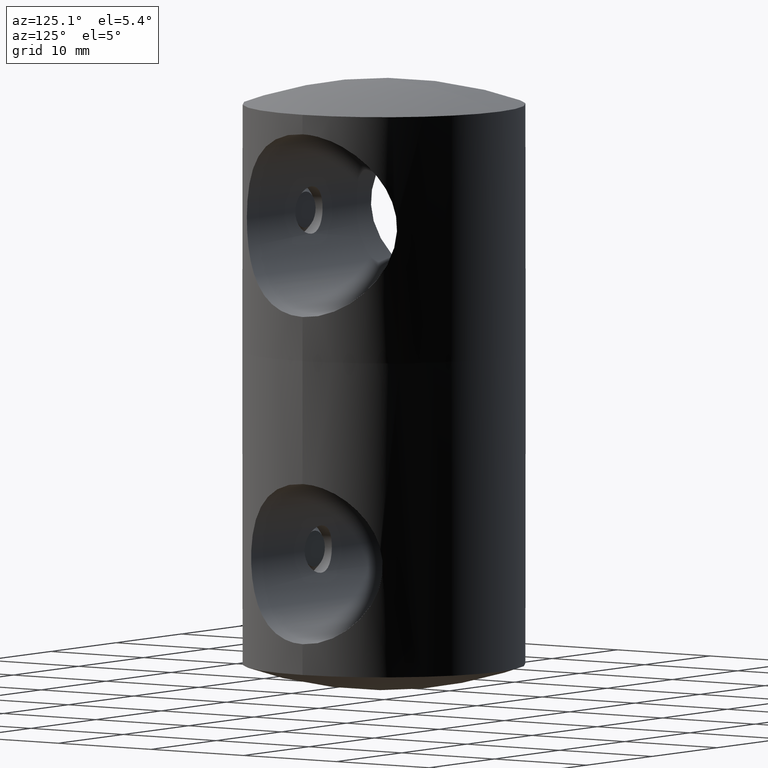
[diagram: clean part render]
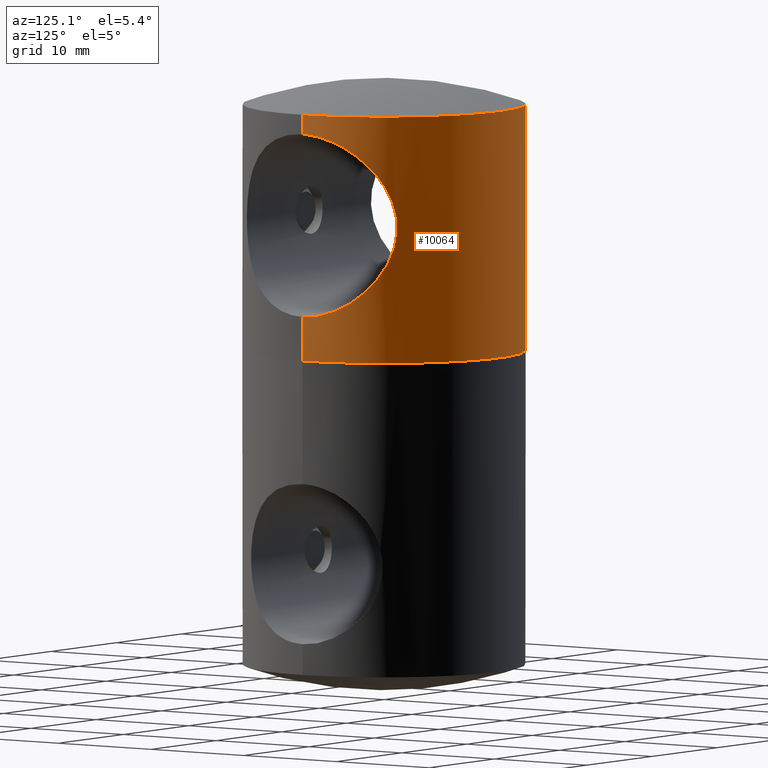
[diagram: same view with one face highlighted and labeled with its STEP entity id]
A machine part, auxiliary view. The second image highlights one B-rep face of the part: STEP entity #10064.
In plain terms, the highlighted cylindrical surface (partial cylindrical patch) has radius 12.5 mm, axis along (-0, -0, -1).
Its self-contained STEP definition (entity closure, byte-faithful):
#131 = CARTESIAN_POINT ( 'NONE',  ( 12.50000000000000000, 2.427082314390154871E-15, 8.099999999999999645 ) ) ;
#816 = CARTESIAN_POINT ( 'NONE',  ( -12.35767926092468372, 1.900159969238726543, -7.878707128710948915 ) ) ;
#1101 = CARTESIAN_POINT ( 'NONE',  ( 11.72524645729331816, 4.338365169962789203, 6.845111458609633104 ) ) ;
#1163 = CARTESIAN_POINT ( 'NONE',  ( 9.950403799970375829, 7.566749653861298164, 2.902343117262097039 ) ) ;
#1217 = CARTESIAN_POINT ( 'NONE',  ( 9.879722448543168056, 7.661982178162126012, -2.679246210205128431 ) ) ;
#1344 = CARTESIAN_POINT ( 'NONE',  ( 11.29218558167254827, 5.376423904100859019, 6.080519229928162517 ) ) ;
#1398 = CARTESIAN_POINT ( 'NONE',  ( -12.22154858838973723, 2.672405942506484777, 7.665063226666491758 ) ) ;
#1484 = VERTEX_POINT ( 'NONE', #9557 ) ;
#1495 = ORIENTED_EDGE ( 'NONE', *, *, #7119, .F. ) ;
#1600 = AXIS2_PLACEMENT_3D ( 'NONE', #2132, #10835, #10572 ) ;
#1831 = CARTESIAN_POINT ( 'NONE',  ( -12.50000000000000000, 8.967065496086580962E-16, 8.099999999999999645 ) ) ;
#1877 = DIRECTION ( 'NONE',  ( -0.000000000000000000, -0.000000000000000000, -1.000000000000000000 ) ) ;
#1919 = CIRCLE ( 'NONE', #2546, 12.49999999999999822 ) ;
#2059 = DIRECTION ( 'NONE',  ( -0.000000000000000000, -0.000000000000000000, -1.000000000000000000 ) ) ;
#2132 = CARTESIAN_POINT ( 'NONE',  ( 0.000000000000000000, 8.964901825574695679E-16, -12.00000000000000000 ) ) ;
#2259 = CARTESIAN_POINT ( 'NONE',  ( -9.880334013773667934, 7.657619852546257988, -2.653716543376681170 ) ) ;
#2276 = DIRECTION ( 'NONE',  ( -0.000000000000000000, -0.000000000000000000, -1.000000000000000000 ) ) ;
#2318 = CARTESIAN_POINT ( 'NONE',  ( -12.21248697414113771, 2.678358357532246714, -7.649100295587559550 ) ) ;
#2509 = CARTESIAN_POINT ( 'NONE',  ( -11.80508178603171565, 4.116968738876153111, -6.980705647827456950 ) ) ;
#2542 = CARTESIAN_POINT ( 'NONE',  ( 12.50000000000000355, 0.5528784438871122697, -8.100000000000003197 ) ) ;
#2546 = AXIS2_PLACEMENT_3D ( 'NONE', #4059, #9712, #14084 ) ;
#2665 = CARTESIAN_POINT ( 'NONE',  ( 9.615099075722453037, 7.987791517898862104, -1.370301011411880543 ) ) ;
#2666 = CARTESIAN_POINT ( 'NONE',  ( -12.49112763227392442, 0.5438777286051753590, 8.086328554396601476 ) ) ;
#2716 = CARTESIAN_POINT ( 'NONE',  ( 12.50000000000000000, 7.513900949208801608E-16, -8.099999999999999645 ) ) ;
#2729 = CARTESIAN_POINT ( 'NONE',  ( 9.700917027979013341, 7.883344374810544508, 1.880594189877250466 ) ) ;
#2788 = CARTESIAN_POINT ( 'NONE',  ( -12.42869573539206485, 1.360138927175487567, 7.989633586327260062 ) ) ;
#2829 = EDGE_LOOP ( 'NONE', ( #5062, #8302, #9232, #13770, #8768, #1495, #14855, #10532, #14150 ) ) ;
#3263 = CARTESIAN_POINT ( 'NONE',  ( 12.50000000000000000, 2.427298681491661089E-15, -12.00000000000000000 ) ) ;
#3683 = DIRECTION ( 'NONE',  ( -0.000000000000000000, -0.000000000000000000, -1.000000000000000000 ) ) ;
#3963 = CARTESIAN_POINT ( 'NONE',  ( -9.568569244901519610, 8.044376384039832573, -1.090564506137312373 ) ) ;
#4004 = CARTESIAN_POINT ( 'NONE',  ( 11.80531911616417062, 4.116239418310659204, 6.981102035184365562 ) ) ;
#4022 = AXIS2_PLACEMENT_3D ( 'NONE', #12107, #2059, #9372 ) ;
#4059 = CARTESIAN_POINT ( 'NONE',  ( 0.000000000000000000, 8.964901825574695679E-16, 9.824560298731698893 ) ) ;
#4080 = CARTESIAN_POINT ( 'NONE',  ( -12.50000000000000000, 8.964901825574695679E-16, -12.00000000000000000 ) ) ;
#4135 = CARTESIAN_POINT ( 'NONE',  ( 10.72318549548232269, 6.432673087154401337, -4.949268225173659275 ) ) ;
#4193 = CARTESIAN_POINT ( 'NONE',  ( 11.29106218945797657, 5.378467049727134075, -6.078259987980083601 ) ) ;
#4204 = LINE ( 'NONE', #4984, #15411 ) ;
#4256 = CARTESIAN_POINT ( 'NONE',  ( -12.32358639111075327, 2.160796334112378592, 7.825461659380446910 ) ) ;
#4316 = CARTESIAN_POINT ( 'NONE',  ( -12.50000000000000000, 8.967065496086580962E-16, 8.099999999999999645 ) ) ;
#4349 = EDGE_CURVE ( 'NONE', #6948, #16384, #8042, .T. ) ;
#4364 = CARTESIAN_POINT ( 'NONE',  ( 12.49110115871714832, 0.5451709117573753094, 8.086288115485565697 ) ) ;
#4898 = VECTOR ( 'NONE', #5558, 1000.000000000000000 ) ;
#4925 = VERTEX_POINT ( 'NONE', #1831 ) ;
#4984 = CARTESIAN_POINT ( 'NONE',  ( -12.50000000000000000, 8.964901825574695679E-16, -12.00000000000000000 ) ) ;
#5062 = ORIENTED_EDGE ( 'NONE', *, *, #6881, .T. ) ;
#5156 = CARTESIAN_POINT ( 'NONE',  ( -9.701591336837374513, 7.882512463272435710, -1.883833287180904037 ) ) ;
#5269 = CARTESIAN_POINT ( 'NONE',  ( -10.91395067144981290, 6.107510191931582177, -5.345263564523463629 ) ) ;
#5432 = CARTESIAN_POINT ( 'NONE',  ( 11.81273853583448030, 4.114187813272791594, -6.997060332505853353 ) ) ;
#5489 = CARTESIAN_POINT ( 'NONE',  ( -11.19526627058776036, 5.563968491168954422, 5.892240609505175364 ) ) ;
#5558 = DIRECTION ( 'NONE',  ( -0.000000000000000000, -0.000000000000000000, -1.000000000000000000 ) ) ;
#5617 = CARTESIAN_POINT ( 'NONE',  ( 10.35589520320698043, 7.008696761748763215, 4.093141067324243210 ) ) ;
#5657 = EDGE_CURVE ( 'NONE', #11025, #16720, #17871, .T. ) ;
#5727 = CARTESIAN_POINT ( 'NONE',  ( -12.45561756411089505, 1.087043516167605084, 8.031366562875868809 ) ) ;
#5789 = CARTESIAN_POINT ( 'NONE',  ( 12.45529628258914556, 1.091060948458985713, 8.030868746058377639 ) ) ;
#6666 = CARTESIAN_POINT ( 'NONE',  ( -11.28850500002958590, 5.383832730285654122, -6.073538379814123367 ) ) ;
#6795 = CARTESIAN_POINT ( 'NONE',  ( -10.72008468265404524, 6.437815186178189819, -4.942573298076234245 ) ) ;
#6881 = EDGE_CURVE ( 'NONE', #13026, #11025, #1919, .T. ) ;
#6890 = CARTESIAN_POINT ( 'NONE',  ( 12.50000000000000000, 7.513900949208801608E-16, -8.099999999999999645 ) ) ;
#6948 = VERTEX_POINT ( 'NONE', #2716 ) ;
#6957 = CARTESIAN_POINT ( 'NONE',  ( -10.72337136915052191, 6.432384334378387081, 4.949706724176071937 ) ) ;
#7119 = EDGE_CURVE ( 'NONE', #1484, #13861, #4204, .T. ) ;
#7207 = CARTESIAN_POINT ( 'NONE',  ( -11.55808065896021652, 4.765924682120233236, 6.554653481533826209 ) ) ;
#7763 = EDGE_CURVE ( 'NONE', #17449, #13026, #15191, .T. ) ;
#7809 = CARTESIAN_POINT ( 'NONE',  ( 0.000000000000000000, 8.964901825574695679E-16, -12.00000000000000000 ) ) ;
#8042 = LINE ( 'NONE', #15225, #16334 ) ;
#8133 = CARTESIAN_POINT ( 'NONE',  ( -12.15475101984847406, 2.928408953426673289, -7.556761950785598536 ) ) ;
#8135 = CARTESIAN_POINT ( 'NONE',  ( -12.49999999999999822, 8.964901825574695679E-16, 9.824560298731698893 ) ) ;
#8302 = ORIENTED_EDGE ( 'NONE', *, *, #5657, .T. ) ;
#8407 = CARTESIAN_POINT ( 'NONE',  ( -10.17952911167893504, 7.258907725143648904, 3.632230832960246847 ) ) ;
#8466 = CARTESIAN_POINT ( 'NONE',  ( 12.32475623888217875, 2.153082440414254339, -7.827294829591770586 ) ) ;
#8533 = CARTESIAN_POINT ( 'NONE',  ( 9.567435330464277854, 8.045733034332242184, 1.082216288772029467 ) ) ;
#8768 = ORIENTED_EDGE ( 'NONE', *, *, #14797, .F. ) ;
#8773 = CARTESIAN_POINT ( 'NONE',  ( 12.32307737004344794, 2.163398512750488223, 7.824660210649143188 ) ) ;
#9232 = ORIENTED_EDGE ( 'NONE', *, *, #13827, .F. ) ;
#9372 = DIRECTION ( 'NONE',  ( -1.000000000000000000, 0.000000000000000000, 0.000000000000000000 ) ) ;
#9510 = CARTESIAN_POINT ( 'NONE',  ( -11.95657642635677753, 3.653719711810222925, -7.233948797580966428 ) ) ;
#9513 = EDGE_CURVE ( 'NONE', #4925, #1484, #18048, .T. ) ;
#9557 = CARTESIAN_POINT ( 'NONE',  ( -12.50000000000000000, 1.836811718986908191E-15, -8.099999999999999645 ) ) ;
#9562 = CARTESIAN_POINT ( 'NONE',  ( -9.520042000924567205, 8.100543242096662766, -0.5355436815845927567 ) ) ;
#9687 = CARTESIAN_POINT ( 'NONE',  ( -9.951367014874424655, 7.565489801909761169, -2.905676790652591102 ) ) ;
#9712 = DIRECTION ( 'NONE',  ( -0.000000000000000000, -0.000000000000000000, -1.000000000000000000 ) ) ;
#9726 = CARTESIAN_POINT ( 'NONE',  ( 10.18366656129051684, 7.253124976668679835, -3.643694447425235072 ) ) ;
#9787 = CARTESIAN_POINT ( 'NONE',  ( -11.47028590896112910, 4.972980621955423786, 6.398955306423481204 ) ) ;
#9843 = CARTESIAN_POINT ( 'NONE',  ( 10.35700933999126860, 7.007021317796642279, -4.095874908106633683 ) ) ;
#9906 = CARTESIAN_POINT ( 'NONE',  ( 9.520717587152519812, 8.099749177061479344, -0.2818719119406181695 ) ) ;
#9960 = CARTESIAN_POINT ( 'NONE',  ( 10.91406870405932672, 6.107576731453586483, 5.345666896797819589 ) ) ;
#10064 = ADVANCED_FACE ( 'NONE', ( #10443 ), #18267, .T. ) ;
#10141 = CARTESIAN_POINT ( 'NONE',  ( 12.42819789938510944, 1.364561915774268552, 7.988859174643784478 ) ) ;
#10443 = FACE_OUTER_BOUND ( 'NONE', #2829, .T. ) ;
#10532 = ORIENTED_EDGE ( 'NONE', *, *, #18106, .F. ) ;
#10572 = DIRECTION ( 'NONE',  ( -1.000000000000000000, 0.000000000000000000, 0.000000000000000000 ) ) ;
#10835 = DIRECTION ( 'NONE',  ( -0.000000000000000000, -0.000000000000000000, -1.000000000000000000 ) ) ;
#11025 = VERTEX_POINT ( 'NONE', #13039 ) ;
#11238 = CARTESIAN_POINT ( 'NONE',  ( -11.72613561294977025, 4.336013166652545436, 6.846642254217911727 ) ) ;
#11358 = CARTESIAN_POINT ( 'NONE',  ( 9.520085792176004702, 8.100491771003921926, 0.5418367762477696026 ) ) ;
#11416 = CARTESIAN_POINT ( 'NONE',  ( 11.47415152566536278, 4.980473280214814835, 6.408801668019295406 ) ) ;
#11475 = CARTESIAN_POINT ( 'NONE',  ( 12.50000000000000533, 0.2724670366685572609, 8.100000000000003197 ) ) ;
#11476 = CARTESIAN_POINT ( 'NONE',  ( -12.02870553853695590, 3.409507870961618892, 7.352312087053694434 ) ) ;
#11580 = CARTESIAN_POINT ( 'NONE',  ( 12.22101742506993105, 2.675014017406148081, 7.664227444482222040 ) ) ;
#12097 = CARTESIAN_POINT ( 'NONE',  ( -9.876153600626508933, 7.666560138321561801, 2.666214138353496299 ) ) ;
#12107 = CARTESIAN_POINT ( 'NONE',  ( 0.000000000000000000, 8.964901825574695679E-16, 9.824560298731698893 ) ) ;
#12480 = CARTESIAN_POINT ( 'NONE',  ( -12.46342989338710794, 1.097403203460836751, -8.043894698703233814 ) ) ;
#12544 = CARTESIAN_POINT ( 'NONE',  ( -12.02679822803973586, 3.416090709427555439, -7.349187332237026915 ) ) ;
#12582 = CARTESIAN_POINT ( 'NONE',  ( 9.748972396418560393, 7.824788271344593760, -2.161675574595297356 ) ) ;
#12637 = CARTESIAN_POINT ( 'NONE',  ( 0.000000000000000000, 12.50000000000000000, 9.824560298731698893 ) ) ;
#12769 = CARTESIAN_POINT ( 'NONE',  ( 9.880370690349279172, 7.657572029206114905, 2.653841750881935635 ) ) ;
#13026 = VERTEX_POINT ( 'NONE', #12637 ) ;
#13039 = CARTESIAN_POINT ( 'NONE',  ( 12.49999999999999822, 2.427298681491661089E-15, 9.824560298731698893 ) ) ;
#13770 = ORIENTED_EDGE ( 'NONE', *, *, #4349, .T. ) ;
#13823 = CARTESIAN_POINT ( 'NONE',  ( -10.18033033413548516, 7.257839893384698371, -3.634849969413386894 ) ) ;
#13827 = EDGE_CURVE ( 'NONE', #6948, #16720, #15807, .T. ) ;
#13861 = VERTEX_POINT ( 'NONE', #15778 ) ;
#13941 = CARTESIAN_POINT ( 'NONE',  ( -12.50000000000000000, 1.836811718986908191E-15, -8.099999999999999645 ) ) ;
#13977 = CARTESIAN_POINT ( 'NONE',  ( 9.755755582469777920, 7.815712851448844312, 2.143809237059420614 ) ) ;
#13999 = CARTESIAN_POINT ( 'NONE',  ( -12.31385491636070384, 2.165044730195933909, -7.809924464396011068 ) ) ;
#14034 = CARTESIAN_POINT ( 'NONE',  ( 12.22070116454564470, 2.675759442852999825, -7.663693953457597630 ) ) ;
#14084 = DIRECTION ( 'NONE',  ( -1.000000000000000000, 0.000000000000000000, 0.000000000000000000 ) ) ;
#14099 = CARTESIAN_POINT ( 'NONE',  ( -11.28897980041873872, 5.371864682342065045, 6.067967955959832516 ) ) ;
#14150 = ORIENTED_EDGE ( 'NONE', *, *, #7763, .T. ) ;
#14161 = CARTESIAN_POINT ( 'NONE',  ( 9.580336641796414199, 8.029227403483570669, -1.102748966237373285 ) ) ;
#14174 = CARTESIAN_POINT ( 'NONE',  ( 12.50000000000000000, 2.427082314390154871E-15, 8.099999999999999645 ) ) ;
#14222 = CARTESIAN_POINT ( 'NONE',  ( 10.17867724942866658, 7.260129053857309778, 3.630111527136852700 ) ) ;
#14691 = DIRECTION ( 'NONE',  ( -1.000000000000000000, 0.000000000000000000, 0.000000000000000000 ) ) ;
#14797 = EDGE_CURVE ( 'NONE', #13861, #16384, #16137, .T. ) ;
#14855 = ORIENTED_EDGE ( 'NONE', *, *, #9513, .F. ) ;
#14951 = DIRECTION ( 'NONE',  ( -0.000000000000000000, -0.000000000000000000, -1.000000000000000000 ) ) ;
#15191 = CIRCLE ( 'NONE', #4022, 12.49999999999999822 ) ;
#15207 = CARTESIAN_POINT ( 'NONE',  ( -11.72360578016522226, 4.342880312005185317, -6.842318894509210381 ) ) ;
#15225 = CARTESIAN_POINT ( 'NONE',  ( 12.50000000000000000, 2.427298681491661089E-15, -12.00000000000000000 ) ) ;
#15241 = CARTESIAN_POINT ( 'NONE',  ( -9.568298830503607633, 8.044728929722264610, 1.090548818117098362 ) ) ;
#15333 = CARTESIAN_POINT ( 'NONE',  ( -9.755670522168493619, 7.815819515107560456, -2.143436167924173574 ) ) ;
#15411 = VECTOR ( 'NONE', #1877, 1000.000000000000000 ) ;
#15416 = CARTESIAN_POINT ( 'NONE',  ( 11.96490898092270427, 3.653242207598543345, -7.248842320046704479 ) ) ;
#15482 = CARTESIAN_POINT ( 'NONE',  ( 11.95630330996560708, 3.654558460803603470, 7.233492588720793037 ) ) ;
#15544 = CARTESIAN_POINT ( 'NONE',  ( -10.91357912058284896, 6.108250137240770705, 5.344554176448153449 ) ) ;
#15778 = CARTESIAN_POINT ( 'NONE',  ( -12.50000000000000000, 8.964901825574695679E-16, -12.00000000000000000 ) ) ;
#15779 = CARTESIAN_POINT ( 'NONE',  ( -11.95753491745220209, 3.650557408356762679, 7.235529152022655452 ) ) ;
#15807 = B_SPLINE_CURVE_WITH_KNOTS ( 'NONE', 3,
 ( #6890, #2542, #18424, #8466, #14034, #15416, #5432, #17099, #4193, #18294, #4135, #9843, #9726, #1217, #12582, #2665, #14161, #18484, #9906, #11358, #8533, #2729, #13977, #12769, #1163, #14222, #5617, #18543, #9960, #1344, #11416, #1101, #4004, #15482, #16915, #11580, #8773, #10141, #5789, #4364, #11475, #131 ),
 .UNSPECIFIED., .F., .F.,
 ( 4, 2, 2, 2, 2, 2, 2, 2, 2, 2, 2, 2, 2, 2, 2, 2, 2, 2, 2, 2, 4 ),
 ( 1.405338240085282366E-19, 0.001632328287734299225, 0.003264656575468598016, 0.004896984863202897241, 0.006529313150937196032, 0.008161641438671493956, 0.009793969726405794482, 0.01142629801414009327, 0.01224246215800724354, 0.01305862630187439206, 0.01469095458960868912, 0.01550711873347584112, 0.01632328287734298791, 0.01795561116507728497, 0.01958793945281158203, 0.02122026774054587561, 0.02203643188441302761, 0.02285259602828017267, 0.02448492431601446626, 0.02530108845988161478, 0.02611725260374875984 ),
 .UNSPECIFIED. ) ;
#15843 = VECTOR ( 'NONE', #2276, 1000.000000000000000 ) ;
#15878 = LINE ( 'NONE', #4080, #4898 ) ;
#16137 = CIRCLE ( 'NONE', #18600, 12.50000000000000000 ) ;
#16334 = VECTOR ( 'NONE', #3683, 1000.000000000000000 ) ;
#16384 = VERTEX_POINT ( 'NONE', #3263 ) ;
#16720 = VERTEX_POINT ( 'NONE', #14174 ) ;
#16756 = CARTESIAN_POINT ( 'NONE',  ( -9.520973359971112160, 8.099448548831345462, 0.5518523867819271622 ) ) ;
#16820 = CARTESIAN_POINT ( 'NONE',  ( -10.35414406946437715, 7.011232456810718716, -4.088656822821724823 ) ) ;
#16915 = CARTESIAN_POINT ( 'NONE',  ( 12.02760166335872682, 3.413435212782875094, 7.350508868551387742 ) ) ;
#16969 = CARTESIAN_POINT ( 'NONE',  ( -10.35676433114384487, 7.007402823801430536, 4.095298590516947890 ) ) ;
#17036 = CARTESIAN_POINT ( 'NONE',  ( -11.80640174314149249, 4.113160411817484707, 6.982933690658644998 ) ) ;
#17099 = CARTESIAN_POINT ( 'NONE',  ( 11.47347012154552104, 4.982651548008703024, -6.407696794538249030 ) ) ;
#17100 = CARTESIAN_POINT ( 'NONE',  ( -12.50000000000000000, 0.2720569333735966544, 8.099999999999999645 ) ) ;
#17449 = VERTEX_POINT ( 'NONE', #8135 ) ;
#17866 = CARTESIAN_POINT ( 'NONE',  ( -9.747884632849888931, 7.826158140951160469, 2.158288449265032938 ) ) ;
#17871 = LINE ( 'NONE', #18474, #15843 ) ;
#18048 = B_SPLINE_CURVE_WITH_KNOTS ( 'NONE', 3,
 ( #4316, #17100, #2666, #5727, #2788, #4256, #1398, #11476, #15779, #17036, #11238, #7207, #9787, #14099, #5489, #15544, #6957, #16969, #8407, #12097, #17866, #15241, #16756, #9562, #3963, #5156, #15333, #2259, #9687, #13823, #16820, #6795, #5269, #6666, #18078, #15207, #2509, #9510, #12544, #8133, #2318, #13999, #816, #12480, #18134, #13941 ),
 .UNSPECIFIED., .F., .F.,
 ( 4, 2, 2, 2, 2, 2, 2, 2, 2, 2, 2, 2, 2, 2, 2, 2, 2, 2, 2, 2, 2, 2, 4 ),
 ( 0.02611725260374877372, 0.02693218829954851373, 0.02774712399534825374, 0.02937699538694773030, 0.03019193108274747378, 0.03100686677854721032, 0.03182180247434695380, 0.03263673817014669382, 0.03426660956174617384, 0.03589648095334565386, 0.03752635234494513389, 0.03915622373654461391, 0.04078609512814409394, 0.04160103082394383395, 0.04241596651974356702, 0.04404583791134304704, 0.04567570930294252707, 0.04730558069454200709, 0.04812051639034174710, 0.04893545208614148712, 0.04975038778194122713, 0.05056532347774096714, 0.05219519486934044022 ),
 .UNSPECIFIED. ) ;
#18078 = CARTESIAN_POINT ( 'NONE',  ( -11.47046356455962979, 4.989251766208274042, -6.402274271509117654 ) ) ;
#18106 = EDGE_CURVE ( 'NONE', #17449, #4925, #15878, .T. ) ;
#18134 = CARTESIAN_POINT ( 'NONE',  ( -12.49999999999999645, 0.5520462798414247363, -8.099999999999997868 ) ) ;
#18267 = CYLINDRICAL_SURFACE ( 'NONE', #1600, 12.50000000000000000 ) ;
#18294 = CARTESIAN_POINT ( 'NONE',  ( 10.91686002276924761, 6.102307794144016029, -5.351167337320835493 ) ) ;
#18424 = CARTESIAN_POINT ( 'NONE',  ( 12.46351380821524835, 1.093711065827361439, -8.044010470471869567 ) ) ;
#18474 = CARTESIAN_POINT ( 'NONE',  ( 12.50000000000000000, 2.427298681491661089E-15, -12.00000000000000000 ) ) ;
#18484 = CARTESIAN_POINT ( 'NONE',  ( 9.533095215835642122, 8.085260569258725383, -0.5595618880688133512 ) ) ;
#18543 = CARTESIAN_POINT ( 'NONE',  ( 10.72277615019982910, 6.433386929966103729, 4.948450939890698841 ) ) ;
#18600 = AXIS2_PLACEMENT_3D ( 'NONE', #7809, #14951, #14691 ) ;